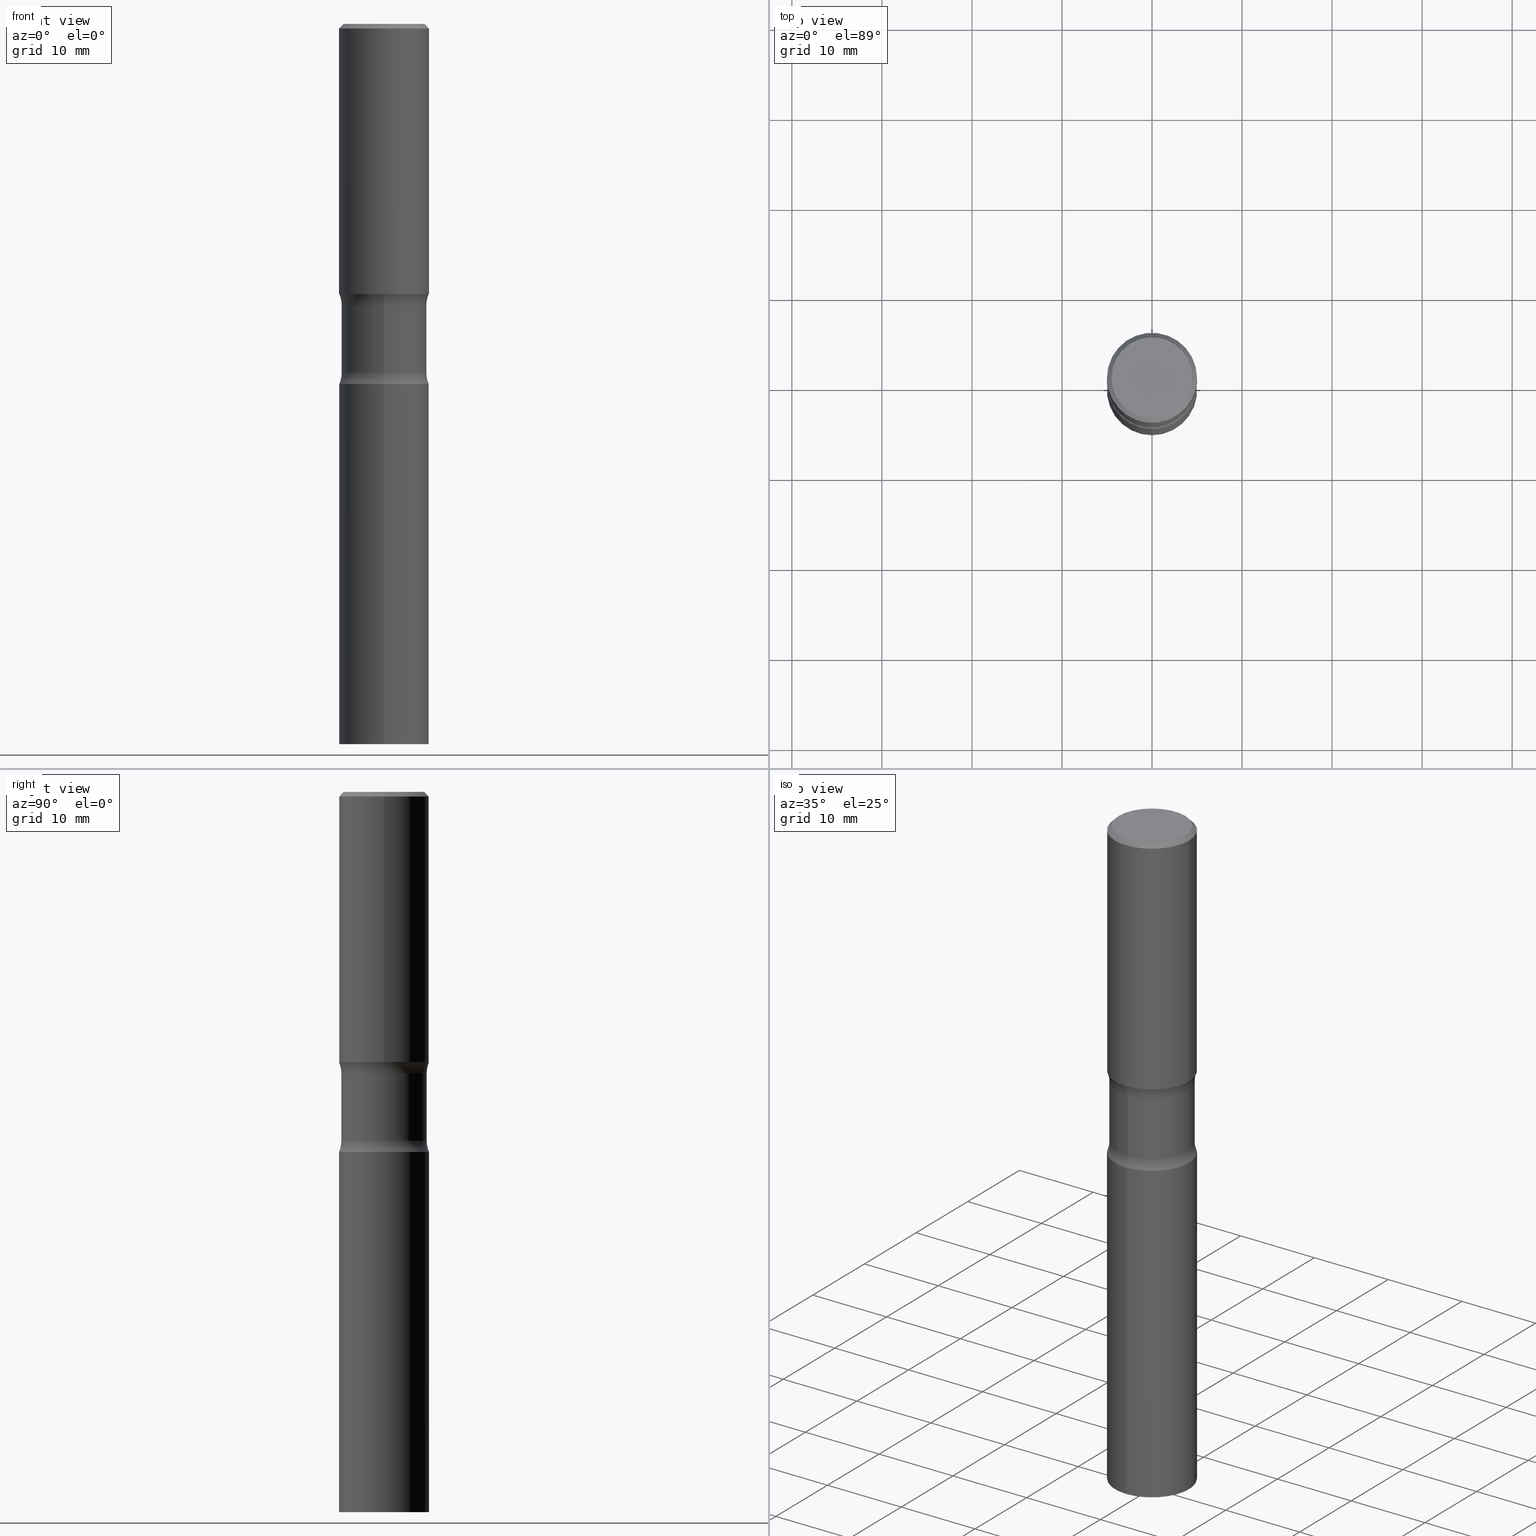
[diagram: canonical four-view strip — front | top / right | iso, engineering-drawing reading convention]
A machine part, canonical four-view strip (front | top / right | iso — engineering-drawing reading convention). The complete STEP part file that produces these views, byte-faithful:
ISO-10303-21;
HEADER;
FILE_DESCRIPTION (( 'STEP AP203' ),
    '1' );
FILE_NAME ('44629.STEP',
    '2024-03-11T13:37:11',
    ( '' ),
    ( '' ),
    'SwSTEP 2.0',
    'SolidWorks 2023',
    '' );
FILE_SCHEMA (( 'CONFIG_CONTROL_DESIGN' ));
ENDSEC;

DATA;
#1 = LINE ( 'NONE', #200, #377 ) ;
#2 = ADVANCED_FACE ( 'NONE', ( #333 ), #177, .T. ) ;
#3 = PERSON_AND_ORGANIZATION_ROLE ( 'creator' ) ;
#4 = FACE_OUTER_BOUND ( 'NONE', #463, .T. ) ;
#5 = LINE ( 'NONE', #123, #272 ) ;
#6 = AXIS2_PLACEMENT_3D ( 'NONE', #237, #312, #473 ) ;
#7 = APPROVAL_STATUS ( 'not_yet_approved' ) ;
#8 = CARTESIAN_POINT ( 'NONE',  ( 4.890937612370281041E-31, -6.982962677686302702E-17, -0.02000000000000003511 ) ) ;
#9 = DIRECTION ( 'NONE',  ( 2.475171165693508831E-29, -3.448945869473840543E-15, -1.000000000000000000 ) ) ;
#10 = APPROVAL_DATE_TIME ( #35, #159 ) ;
#11 =( NAMED_UNIT ( * ) PLANE_ANGLE_UNIT ( ) SI_UNIT ( $, .RADIAN. ) );
#12 = APPROVAL_PERSON_ORGANIZATION ( #84, #110, #434 ) ;
#13 = ORIENTED_EDGE ( 'NONE', *, *, #58, .T. ) ;
#14 = CIRCLE ( 'NONE', #417, 0.1968499999999999417 ) ;
#15 = CARTESIAN_POINT ( 'NONE',  ( 3.849290930426290038E-29, -5.501010267591150684E-15, -1.574799999999999756 ) ) ;
#16 = EDGE_LOOP ( 'NONE', ( #411, #50, #226, #247 ) ) ;
#17 = DIRECTION ( 'NONE',  ( -1.000000000000000000, 6.982962677686265922E-15, -4.883557194083112340E-29 ) ) ;
#18 = ORIENTED_EDGE ( 'NONE', *, *, #243, .T. ) ;
#19 = ORIENTED_EDGE ( 'NONE', *, *, #419, .F. ) ;
#20 = DIRECTION ( 'NONE',  ( 2.475171165693508831E-29, -3.448945869473840543E-15, -1.000000000000000000 ) ) ;
#21 = CIRCLE ( 'NONE', #201, 0.1768499999999999239 ) ;
#22 = EDGE_LOOP ( 'NONE', ( #266, #222, #59, #366 ) ) ;
#23 = CIRCLE ( 'NONE', #310, 0.1249999999999999584 ) ;
#24 = EDGE_CURVE ( 'NONE', #448, #297, #375, .T. ) ;
#25 = ORIENTED_EDGE ( 'NONE', *, *, #395, .F. ) ;
#26 = ORIENTED_EDGE ( 'NONE', *, *, #273, .F. ) ;
#27 = ORIENTED_EDGE ( 'NONE', *, *, #231, .T. ) ;
#28 = CARTESIAN_POINT ( 'NONE',  ( 2.998087953510655377E-29, -4.314929469621585971E-15, -1.230903388438940427 ) ) ;
#29 = ORIENTED_EDGE ( 'NONE', *, *, #141, .F. ) ;
#30 = DIRECTION ( 'NONE',  ( 6.982962677686265922E-15, 1.000000000000000000, -2.929595703661408850E-15 ) ) ;
#31 = ADVANCED_BREP_SHAPE_REPRESENTATION ( '44629', ( #103, #121, #119, #190 ), #299 ) ;
#32 = COORDINATED_UNIVERSAL_TIME_OFFSET ( 5, 0, .BEHIND. ) ;
#33 = EDGE_LOOP ( 'NONE', ( #252, #416, #288, #425 ) ) ;
#34 = CYLINDRICAL_SURFACE ( 'NONE', #433, 0.1968499999999999694 ) ;
#35 = DATE_AND_TIME ( #304, #96 ) ;
#36 = CARTESIAN_POINT ( 'NONE',  ( 3.010135839855015201E-29, -4.297676210653356635E-15, -1.230903388438940427 ) ) ;
#37 = DIRECTION ( 'NONE',  ( -2.444304629429953350E-29, 3.493148506217393663E-15, 1.000000000000000000 ) ) ;
#38 = CIRCLE ( 'NONE', #133, 0.1968500000000000250 ) ;
#39 = TOROIDAL_SURFACE ( 'NONE', #136, 0.3114999999999999991, 0.1250000000000000278 ) ;
#40 = DIRECTION ( 'NONE',  ( 2.475171165693508831E-29, -3.448945869473840543E-15, -1.000000000000000000 ) ) ;
#41 = CYLINDRICAL_SURFACE ( 'NONE', #168, 0.1968499999999999694 ) ;
#42 = APPROVAL_DATE_TIME ( #87, #110 ) ;
#43 = FACE_OUTER_BOUND ( 'NONE', #259, .T. ) ;
#44 = ADVANCED_FACE ( 'NONE', ( #456 ), #102, .F. ) ;
#45 = FACE_OUTER_BOUND ( 'NONE', #22, .T. ) ;
#46 = ADVANCED_FACE ( 'NONE', ( #52 ), #140, .T. ) ;
#47 = CARTESIAN_POINT ( 'NONE',  ( 1.398703375343814783E-15, 0.1968499999999890060, -3.149600000000000843 ) ) ;
#48 = ORIENTED_EDGE ( 'NONE', *, *, #24, .F. ) ;
#49 = DIRECTION ( 'NONE',  ( -2.445468806185136597E-29, 3.491481338843145583E-15, 1.000000000000000000 ) ) ;
#50 = ORIENTED_EDGE ( 'NONE', *, *, #488, .T. ) ;
#51 = LINE ( 'NONE', #248, #355 ) ;
#52 = FACE_OUTER_BOUND ( 'NONE', #380, .T. ) ;
#53 = AXIS2_PLACEMENT_3D ( 'NONE', #36, #303, #424 ) ;
#54 = DIRECTION ( 'NONE',  ( 1.000000000000000000, -6.982962677686266711E-15, 4.875932113059880251E-29 ) ) ;
#55 = CYLINDRICAL_SURFACE ( 'NONE', #501, 0.1865000000000000546 ) ;
#56 = DIRECTION ( 'NONE',  ( 6.860497997771532351E-15, 1.000000000000000000, 0.000000000000000000 ) ) ;
#57 = ORIENTED_EDGE ( 'NONE', *, *, #361, .T. ) ;
#58 = EDGE_CURVE ( 'NONE', #340, #305, #38, .T. ) ;
#59 = ORIENTED_EDGE ( 'NONE', *, *, #164, .T. ) ;
#60 = CARTESIAN_POINT ( 'NONE',  ( 1.302322539388566302E-15, 0.1864999999999891189, -3.149600000000000399 ) ) ;
#61 = AXIS2_PLACEMENT_3D ( 'NONE', #142, #406, #257 ) ;
#62 = EDGE_LOOP ( 'NONE', ( #149, #452, #337, #48 ) ) ;
#63 = AXIS2_PLACEMENT_3D ( 'NONE', #8, #197, #319 ) ;
#64 = ORIENTED_EDGE ( 'NONE', *, *, #477, .F. ) ;
#65 = FACE_OUTER_BOUND ( 'NONE', #462, .T. ) ;
#66 = ORIENTED_EDGE ( 'NONE', *, *, #58, .F. ) ;
#67 = EDGE_CURVE ( 'NONE', #423, #302, #264, .T. ) ;
#68 = VERTEX_POINT ( 'NONE', #97 ) ;
#69 = CC_DESIGN_DATE_AND_TIME_ASSIGNMENT ( #91, #359, ( #373 ) ) ;
#70 = DIRECTION ( 'NONE',  ( 6.982962677686265922E-15, 1.000000000000000000, -2.929595703661407273E-15 ) ) ;
#71 = AXIS2_PLACEMENT_3D ( 'NONE', #365, #49, #54 ) ;
#72 = CLOSED_SHELL ( 'NONE', ( #208, #269, #508, #144, #44, #287 ) ) ;
#73 = DIRECTION ( 'NONE',  ( -2.475171165693508831E-29, 3.448945869473840543E-15, 1.000000000000000000 ) ) ;
#74 = EDGE_CURVE ( 'NONE', #368, #336, #458, .T. ) ;
#75 = ORIENTED_EDGE ( 'NONE', *, *, #141, .T. ) ;
#76 = PLANE ( 'NONE',  #280 ) ;
#77 = ADVANCED_FACE ( 'NONE', ( #409 ), #55, .T. ) ;
#78 = DIRECTION ( 'NONE',  ( 6.982962677686265133E-15, 1.000000000000000000, -3.448945869473840543E-15 ) ) ;
#79 = AXIS2_PLACEMENT_3D ( 'NONE', #268, #227, #385 ) ;
#80 = CARTESIAN_POINT ( 'NONE',  ( 2.874816042492756057E-29, -4.143160278779300076E-15, -1.181099999999999817 ) ) ;
#81 = PERSON_AND_ORGANIZATION_ROLE ( 'design_supplier' ) ;
#82 = PRODUCT_DEFINITION_SHAPE ( 'NONE', 'NONE',  #422 ) ;
#83 = CARTESIAN_POINT ( 'NONE',  ( 2.888343206985264877E-29, -4.123788609307639024E-15, -1.181099999999999817 ) ) ;
#84 = PERSON_AND_ORGANIZATION ( #126, #440 ) ;
#85 = DIMENSIONAL_EXPONENTS ( 1.000000000000000000, 0.000000000000000000, 0.000000000000000000, 0.000000000000000000, 0.000000000000000000, 0.000000000000000000, 0.000000000000000000 ) ;
#86 = DIRECTION ( 'NONE',  ( 1.000000000000000000, -6.982962677686266711E-15, 4.876176775795935793E-29 ) ) ;
#87 = DATE_AND_TIME ( #249, #167 ) ;
#88 = DIRECTION ( 'NONE',  ( -1.000000000000000000, 6.982962677686265922E-15, -4.883557194083112340E-29 ) ) ;
#89 = CIRCLE ( 'NONE', #420, 0.1865000000000000824 ) ;
#90 = DIRECTION ( 'NONE',  ( 6.982962677686265133E-15, 1.000000000000000000, -3.448945869473840543E-15 ) ) ;
#91 = DATE_AND_TIME ( #478, #132 ) ;
#92 = ADVANCED_FACE ( 'NONE', ( #342 ), #507, .F. ) ;
#93 = DIRECTION ( 'NONE',  ( 1.000000000000000000, 0.000000000000000000, 0.000000000000000000 ) ) ;
#94 = ORIENTED_EDGE ( 'NONE', *, *, #497, .T. ) ;
#95 = ORIENTED_EDGE ( 'NONE', *, *, #164, .F. ) ;
#96 = LOCAL_TIME ( 9, 37, 11.00000000000000000, #32 ) ;
#97 = CARTESIAN_POINT ( 'NONE',  ( 1.374596203102580262E-15, 0.1968499999999945849, -1.574800000000000422 ) ) ;
#98 = APPLICATION_CONTEXT ( 'configuration controlled 3d designs of mechanical parts and assemblies' ) ;
#99 = CIRCLE ( 'NONE', #228, 0.1968500000000000250 ) ;
#100 = FACE_OUTER_BOUND ( 'NONE', #256, .T. ) ;
#101 = CC_DESIGN_PERSON_AND_ORGANIZATION_ASSIGNMENT ( #356, #443, ( #373 ) ) ;
#102 = PLANE ( 'NONE',  #174 ) ;
#103 = MANIFOLD_SOLID_BREP ( 'Body-Move/Copy2[1]', #427 ) ;
#104 = ORIENTED_EDGE ( 'NONE', *, *, #419, .T. ) ;
#105 = CARTESIAN_POINT ( 'NONE',  ( 1.398703375343757393E-15, 0.1968500000000000527, -6.876262834488941313E-16 ) ) ;
#106 = DIRECTION ( 'NONE',  ( 6.982962677686265922E-15, 1.000000000000000000, -2.929595703661406878E-15 ) ) ;
#107 = ORIENTED_EDGE ( 'NONE', *, *, #198, .F. ) ;
#108 = DIRECTION ( 'NONE',  ( -2.444304629429953350E-29, 3.493148506217393663E-15, 1.000000000000000000 ) ) ;
#109 = CIRCLE ( 'NONE', #61, 0.1968500000000000250 ) ;
#110 = APPROVAL ( #353, 'UNSPECIFIED' ) ;
#111 = VERTEX_POINT ( 'NONE', #188 ) ;
#112 = CARTESIAN_POINT ( 'NONE',  ( 2.888343206985264877E-29, -4.123788609307639024E-15, -1.181099999999999817 ) ) ;
#113 = ORIENTED_EDGE ( 'NONE', *, *, #386, .T. ) ;
#114 = DIRECTION ( 'NONE',  ( -2.445468806185136597E-29, 3.491481338843145583E-15, 1.000000000000000000 ) ) ;
#115 = ADVANCED_FACE ( 'NONE', ( #223 ), #503, .F. ) ;
#116 = ORIENTED_EDGE ( 'NONE', *, *, #344, .T. ) ;
#117 = LINE ( 'NONE', #271, #254 ) ;
#118 = AXIS2_PLACEMENT_3D ( 'NONE', #130, #129, #396 ) ;
#119 = MANIFOLD_SOLID_BREP ( 'Body-Move/Copy2[4]', #219 ) ;
#120 = CARTESIAN_POINT ( 'NONE',  ( -1.314985953722828706E-15, -0.1865000000000042735, -1.230903388438939983 ) ) ;
#121 = MANIFOLD_SOLID_BREP ( 'Body-Move/Copy2[2]', #72 ) ;
#122 = CARTESIAN_POINT ( 'NONE',  ( 0.000000000000000000, 0.000000000000000000, 0.000000000000000000 ) ) ;
#123 = CARTESIAN_POINT ( 'NONE',  ( -0.1968499999999999417, 1.304766576325678113E-15, -0.02000000000000003511 ) ) ;
#124 = DATE_AND_TIME ( #137, #431 ) ;
#125 = AXIS2_PLACEMENT_3D ( 'NONE', #499, #73, #161 ) ;
#126 = PERSON ( 'UNSPECIFIED', 'UNSPECIFIED', 'UNSPECIFIED', ('UNSPECIFIED'), ('UNSPECIFIED'), ('UNSPECIFIED') ) ;
#127 = DIRECTION ( 'NONE',  ( -2.445468806185136877E-29, 3.491481338843145188E-15, 1.000000000000000000 ) ) ;
#128 = APPLICATION_CONTEXT ( 'configuration controlled 3d designs of mechanical parts and assemblies' ) ;
#129 = DIRECTION ( 'NONE',  ( 2.475171165693508831E-29, -3.448945869473840543E-15, -1.000000000000000000 ) ) ;
#130 = CARTESIAN_POINT ( 'NONE',  ( 2.998087953510655377E-29, -4.314929469621585971E-15, -1.230903388438940427 ) ) ;
#131 = SECURITY_CLASSIFICATION_LEVEL ( 'unclassified' ) ;
#132 = LOCAL_TIME ( 9, 37, 11.00000000000000000, #481 ) ;
#133 = AXIS2_PLACEMENT_3D ( 'NONE', #489, #108, #487 ) ;
#134 = AXIS2_PLACEMENT_3D ( 'NONE', #296, #139, #445 ) ;
#135 = CARTESIAN_POINT ( 'NONE',  ( -0.1968499999999999417, 1.304766576325678113E-15, -0.02000000000000003511 ) ) ;
#136 = AXIS2_PLACEMENT_3D ( 'NONE', #240, #9, #78 ) ;
#137 = CALENDAR_DATE ( 2024, 11, 3 ) ;
#138 = PERSON_AND_ORGANIZATION_ROLE ( 'design_owner' ) ;
#139 = DIRECTION ( 'NONE',  ( -2.445468806185136597E-29, 3.491481338843145583E-15, 1.000000000000000000 ) ) ;
#140 = PLANE ( 'NONE',  #347 ) ;
#141 = EDGE_CURVE ( 'NONE', #302, #423, #89, .T. ) ;
#142 = CARTESIAN_POINT ( 'NONE',  ( 7.698581860852581197E-29, -1.100202053518230452E-14, -3.149600000000000399 ) ) ;
#143 = APPROVAL_PERSON_ORGANIZATION ( #444, #159, #383 ) ;
#144 = ADVANCED_FACE ( 'NONE', ( #65 ), #76, .F. ) ;
#145 = VERTEX_POINT ( 'NONE', #229 ) ;
#146 = CIRCLE ( 'NONE', #175, 0.1250000000000000278 ) ;
#147 = CARTESIAN_POINT ( 'NONE',  ( -2.137045126305794728E-15, -0.3115000000000053282, -1.524996611561058035 ) ) ;
#148 = VERTEX_POINT ( 'NONE', #381 ) ;
#149 = ORIENTED_EDGE ( 'NONE', *, *, #243, .F. ) ;
#150 = CARTESIAN_POINT ( 'NONE',  ( 7.747190482160426523E-29, -1.093241022283855548E-14, -3.149599999999999511 ) ) ;
#151 = EDGE_CURVE ( 'NONE', #216, #297, #505, .T. ) ;
#152 = ORIENTED_EDGE ( 'NONE', *, *, #477, .T. ) ;
#153 = LOCAL_TIME ( 9, 37, 11.00000000000000000, #163 ) ;
#154 = DIRECTION ( 'NONE',  ( 2.475171165693508831E-29, -3.448945869473840543E-15, -1.000000000000000000 ) ) ;
#155 = AXIS2_PLACEMENT_3D ( 'NONE', #28, #301, #30 ) ;
#156 = ORIENTED_EDGE ( 'NONE', *, *, #436, .T. ) ;
#157 = DIRECTION ( 'NONE',  ( 0.7071067811865472397, -7.319954787623254468E-15, -0.7071067811865477948 ) ) ;
#158 = CARTESIAN_POINT ( 'NONE',  ( 3.726019019408391277E-29, -5.329241076748865577E-15, -1.524996611561059146 ) ) ;
#159 = APPROVAL ( #405, 'UNSPECIFIED' ) ;
#160 = CIRCLE ( 'NONE', #349, 0.1968500000000000527 ) ;
#161 = DIRECTION ( 'NONE',  ( -6.982962677686265922E-15, -1.000000000000000000, 3.448945869473840543E-15 ) ) ;
#162 = DIRECTION ( 'NONE',  ( -6.982962677686265133E-15, -1.000000000000000000, 4.163344669033674057E-15 ) ) ;
#163 = COORDINATED_UNIVERSAL_TIME_OFFSET ( 5, 0, .BEHIND. ) ;
#164 = EDGE_CURVE ( 'NONE', #297, #448, #14, .T. ) ;
#165 = PRODUCT ( '44629', '44629', '', ( #446 ) ) ;
#166 = PERSON_AND_ORGANIZATION ( #126, #440 ) ;
#167 = LOCAL_TIME ( 9, 37, 11.00000000000000000, #397 ) ;
#168 = AXIS2_PLACEMENT_3D ( 'NONE', #169, #204, #86 ) ;
#169 = CARTESIAN_POINT ( 'NONE',  ( 0.000000000000000000, 0.000000000000000000, 0.000000000000000000 ) ) ;
#170 = DIRECTION ( 'NONE',  ( 2.475171165693508831E-29, -3.448945869473840543E-15, -1.000000000000000000 ) ) ;
#171 = EDGE_CURVE ( 'NONE', #414, #191, #465, .T. ) ;
#172 = CARTESIAN_POINT ( 'NONE',  ( -1.350489030861297227E-15, -0.1968500000000041328, -1.181099999999999151 ) ) ;
#173 = CC_DESIGN_APPROVAL ( #159, ( #422 ) ) ;
#174 = AXIS2_PLACEMENT_3D ( 'NONE', #338, #498, #327 ) ;
#175 = AXIS2_PLACEMENT_3D ( 'NONE', #439, #88, #275 ) ;
#176 = DIRECTION ( 'NONE',  ( 2.445468806185136597E-29, -3.491481338843145583E-15, -1.000000000000000000 ) ) ;
#177 = CYLINDRICAL_SURFACE ( 'NONE', #389, 0.1865000000000000546 ) ;
#178 =( NAMED_UNIT ( * ) SI_UNIT ( $, .STERADIAN. ) SOLID_ANGLE_UNIT ( ) );
#179 = DIRECTION ( 'NONE',  ( 2.444304629429953350E-29, -3.493148506217393663E-15, -1.000000000000000000 ) ) ;
#180 = ORIENTED_EDGE ( 'NONE', *, *, #395, .T. ) ;
#181 = EDGE_LOOP ( 'NONE', ( #460, #211, #180, #298 ) ) ;
#182 = DIRECTION ( 'NONE',  ( -6.982962677686265133E-15, -1.000000000000000000, 0.000000000000000000 ) ) ;
#183 = EDGE_CURVE ( 'NONE', #191, #335, #341, .T. ) ;
#184 = CARTESIAN_POINT ( 'NONE',  ( 1.597802926082413196E-29, -1.973868320454601619E-14, -3.149599999999999511 ) ) ;
#185 = ORIENTED_EDGE ( 'NONE', *, *, #457, .F. ) ;
#186 = DIRECTION ( 'NONE',  ( 2.475171165693508831E-29, -3.448945869473840543E-15, -1.000000000000000000 ) ) ;
#187 = ORIENTED_EDGE ( 'NONE', *, *, #171, .T. ) ;
#188 = CARTESIAN_POINT ( 'NONE',  ( -0.1768499999999999239, 1.269851762937246858E-15, 4.268512490091652920E-18 ) ) ;
#189 = ORIENTED_EDGE ( 'NONE', *, *, #491, .F. ) ;
#190 = AXIS2_PLACEMENT_3D ( 'NONE', #244, #329, #93 ) ;
#191 = VERTEX_POINT ( 'NONE', #120 ) ;
#192 = CARTESIAN_POINT ( 'NONE',  ( 0.1768499999999999239, -1.316798864272041549E-15, 4.268512490109333727E-18 ) ) ;
#193 = CYLINDRICAL_SURFACE ( 'NONE', #316, 0.1968500000000000527 ) ;
#194 = DIRECTION ( 'NONE',  ( -6.982962677686265133E-15, -1.000000000000000000, 3.493148506217393663E-15 ) ) ;
#195 = AXIS2_PLACEMENT_3D ( 'NONE', #83, #40, #390 ) ;
#196 = VECTOR ( 'NONE', #494, 39.37007874015748143 ) ;
#197 = DIRECTION ( 'NONE',  ( 2.445468806185136597E-29, -3.491481338843145583E-15, -1.000000000000000000 ) ) ;
#198 = EDGE_CURVE ( 'NONE', #336, #368, #408, .T. ) ;
#199 = CARTESIAN_POINT ( 'NONE',  ( -1.350489030861287564E-15, -0.1968500000000055761, -1.574799999999999311 ) ) ;
#200 = CARTESIAN_POINT ( 'NONE',  ( 0.1968499999999999694, -1.374596203102541411E-15, 9.598753983154298056E-30 ) ) ;
#201 = AXIS2_PLACEMENT_3D ( 'NONE', #295, #404, #453 ) ;
#202 = ADVANCED_FACE ( 'NONE', ( #274 ), #306, .F. ) ;
#203 = AXIS2_PLACEMENT_3D ( 'NONE', #246, #394, #403 ) ;
#204 = DIRECTION ( 'NONE',  ( -2.445468806185136597E-29, 3.491481338843145583E-15, 1.000000000000000000 ) ) ;
#205 = PERSON_AND_ORGANIZATION ( #126, #440 ) ;
#206 = CARTESIAN_POINT ( 'NONE',  ( 1.302322539388526465E-15, 0.1864999999999947533, -1.524996611561059812 ) ) ;
#207 = ORIENTED_EDGE ( 'NONE', *, *, #468, .F. ) ;
#208 = ADVANCED_FACE ( 'NONE', ( #504 ), #34, .T. ) ;
#209 = VECTOR ( 'NONE', #157, 39.37007874015748143 ) ;
#210 = LINE ( 'NONE', #105, #253 ) ;
#211 = ORIENTED_EDGE ( 'NONE', *, *, #183, .T. ) ;
#212 = DIRECTION ( 'NONE',  ( -2.444304629429953350E-29, 3.493148506217393663E-15, 1.000000000000000000 ) ) ;
#213 = ORIENTED_EDGE ( 'NONE', *, *, #479, .T. ) ;
#214 = FACE_OUTER_BOUND ( 'NONE', #33, .T. ) ;
#215 = ORIENTED_EDGE ( 'NONE', *, *, #429, .T. ) ;
#216 = VERTEX_POINT ( 'NONE', #192 ) ;
#217 = CIRCLE ( 'NONE', #500, 0.1249999999999999584 ) ;
#218 = CARTESIAN_POINT ( 'NONE',  ( 4.890937612370281041E-31, -6.982962677686302702E-17, -0.02000000000000003511 ) ) ;
#219 = CLOSED_SHELL ( 'NONE', ( #77, #402, #262, #92, #251, #115, #438, #2 ) ) ;
#220 = EDGE_LOOP ( 'NONE', ( #263, #455, #113, #224 ) ) ;
#221 = CONICAL_SURFACE ( 'NONE', #63, 0.1968499999999999417, 0.7853981633974479459 ) ;
#222 = ORIENTED_EDGE ( 'NONE', *, *, #151, .T. ) ;
#223 = FACE_OUTER_BOUND ( 'NONE', #502, .T. ) ;
#224 = ORIENTED_EDGE ( 'NONE', *, *, #321, .T. ) ;
#225 = CARTESIAN_POINT ( 'NONE',  ( 1.234936949548815604E-15, 0.1768499999999999239, -6.153342185293597578E-16 ) ) ;
#226 = ORIENTED_EDGE ( 'NONE', *, *, #250, .F. ) ;
#227 = DIRECTION ( 'NONE',  ( 2.444304629429953350E-29, -3.493148506217393663E-15, -1.000000000000000000 ) ) ;
#228 = AXIS2_PLACEMENT_3D ( 'NONE', #80, #358, #350 ) ;
#229 = CARTESIAN_POINT ( 'NONE',  ( 1.374596203102570007E-15, 0.1968499999999958894, -1.181100000000000483 ) ) ;
#230 = DIRECTION ( 'NONE',  ( -2.444304629429953070E-29, 3.493148506217393663E-15, 1.000000000000000000 ) ) ;
#231 = EDGE_CURVE ( 'NONE', #305, #148, #117, .T. ) ;
#232 = PLANE ( 'NONE',  #195 ) ;
#233 = AXIS2_PLACEMENT_3D ( 'NONE', #218, #176, #486 ) ;
#234 = AXIS2_PLACEMENT_3D ( 'NONE', #454, #413, #261 ) ;
#235 = ORIENTED_EDGE ( 'NONE', *, *, #321, .F. ) ;
#236 = CC_DESIGN_PERSON_AND_ORGANIZATION_ASSIGNMENT ( #400, #81, ( #472 ) ) ;
#237 = CARTESIAN_POINT ( 'NONE',  ( 3.849290930426290038E-29, -5.501010267591150684E-15, -1.574799999999999756 ) ) ;
#238 = SHAPE_DEFINITION_REPRESENTATION ( #82, #31 ) ;
#239 = DIRECTION ( 'NONE',  ( 6.982962677686265133E-15, 1.000000000000000000, -3.448945869473840543E-15 ) ) ;
#240 = CARTESIAN_POINT ( 'NONE',  ( 3.010135839855015201E-29, -4.297676210653356635E-15, -1.230903388438940427 ) ) ;
#241 = APPROVAL_ROLE ( '' ) ;
#242 = ADVANCED_FACE ( 'NONE', ( #428 ), #193, .T. ) ;
#243 = EDGE_CURVE ( 'NONE', #368, #448, #437, .T. ) ;
#244 = CARTESIAN_POINT ( 'NONE',  ( 0.000000000000000000, 0.000000000000000000, 0.000000000000000000 ) ) ;
#245 = AXIS2_PLACEMENT_3D ( 'NONE', #314, #354, #480 ) ;
#246 = CARTESIAN_POINT ( 'NONE',  ( 2.874816042492756057E-29, -4.143160278779300076E-15, -1.181099999999999817 ) ) ;
#247 = ORIENTED_EDGE ( 'NONE', *, *, #231, .F. ) ;
#248 = CARTESIAN_POINT ( 'NONE',  ( -1.279482876584313248E-15, -0.1865000000000109626, -3.149599999999999067 ) ) ;
#249 = CALENDAR_DATE ( 2024, 11, 3 ) ;
#250 = EDGE_CURVE ( 'NONE', #148, #469, #391, .T. ) ;
#251 = ADVANCED_FACE ( 'NONE', ( #432 ), #232, .F. ) ;
#252 = ORIENTED_EDGE ( 'NONE', *, *, #151, .F. ) ;
#253 = VECTOR ( 'NONE', #260, 39.37007874015748143 ) ;
#254 = VECTOR ( 'NONE', #230, 39.37007874015748143 ) ;
#255 = LENGTH_MEASURE_WITH_UNIT ( LENGTH_MEASURE( 0.02539999999999999897 ), #362 );
#256 = EDGE_LOOP ( 'NONE', ( #207, #343, #104, #75 ) ) ;
#257 = DIRECTION ( 'NONE',  ( -6.982962677686265133E-15, -1.000000000000000000, 2.775563112689116301E-15 ) ) ;
#258 = DIRECTION ( 'NONE',  ( 2.475171165693508831E-29, -3.448945869473840543E-15, -1.000000000000000000 ) ) ;
#259 = EDGE_LOOP ( 'NONE', ( #407, #13, #27, #64 ) ) ;
#260 = DIRECTION ( 'NONE',  ( -2.444304629429953070E-29, 3.493148506217393663E-15, 1.000000000000000000 ) ) ;
#261 = DIRECTION ( 'NONE',  ( 1.000000000000000000, -6.982962677686269077E-15, 0.000000000000000000 ) ) ;
#262 = ADVANCED_FACE ( 'NONE', ( #322 ), #39, .F. ) ;
#263 = ORIENTED_EDGE ( 'NONE', *, *, #183, .F. ) ;
#264 = CIRCLE ( 'NONE', #324, 0.1865000000000000824 ) ;
#265 = TOROIDAL_SURFACE ( 'NONE', #325, 0.3114999999999999991, 0.1249999999999999584 ) ;
#266 = ORIENTED_EDGE ( 'NONE', *, *, #497, .F. ) ;
#267 = ORIENTED_EDGE ( 'NONE', *, *, #198, .T. ) ;
#268 = CARTESIAN_POINT ( 'NONE',  ( 3.851124275980352235E-29, -5.498384812410185366E-15, -1.574799999999999756 ) ) ;
#269 = ADVANCED_FACE ( 'NONE', ( #45 ), #221, .T. ) ;
#270 = CARTESIAN_POINT ( 'NONE',  ( -2.137045126305801827E-15, -0.3115000000000043290, -1.230903388438939317 ) ) ;
#271 = CARTESIAN_POINT ( 'NONE',  ( -1.374596203102541608E-15, -0.1968500000000000527, 6.876262834488941313E-16 ) ) ;
#272 = VECTOR ( 'NONE', #281, 39.37007874015748143 ) ;
#273 = EDGE_CURVE ( 'NONE', #336, #297, #1, .T. ) ;
#274 = FACE_OUTER_BOUND ( 'NONE', #379, .T. ) ;
#275 = DIRECTION ( 'NONE',  ( -6.982962677686265133E-15, -1.000000000000000000, 0.000000000000000000 ) ) ;
#276 = ORIENTED_EDGE ( 'NONE', *, *, #468, .T. ) ;
#277 = FACE_OUTER_BOUND ( 'NONE', #62, .T. ) ;
#278 = AXIS2_PLACEMENT_3D ( 'NONE', #15, #212, #326 ) ;
#279 = DATE_TIME_ROLE ( 'creation_date' ) ;
#280 = AXIS2_PLACEMENT_3D ( 'NONE', #225, #311, #382 ) ;
#281 = DIRECTION ( 'NONE',  ( -0.7071067811865472397, 2.468850131082253905E-15, -0.7071067811865477948 ) ) ;
#282 = CARTESIAN_POINT ( 'NONE',  ( -0.1968499999999999694, 1.398703375343756999E-15, -9.682923725166782276E-30 ) ) ;
#283 = CARTESIAN_POINT ( 'NONE',  ( 3.849290930426290038E-29, -5.501010267591150684E-15, -1.574799999999999756 ) ) ;
#284 = APPROVAL_PERSON_ORGANIZATION ( #166, #374, #241 ) ;
#285 = VECTOR ( 'NONE', #127, 39.37007874015748143 ) ;
#286 = APPLICATION_PROTOCOL_DEFINITION ( 'international standard', 'config_control_design', 1994, #128 ) ;
#287 = ADVANCED_FACE ( 'NONE', ( #277 ), #41, .T. ) ;
#288 = ORIENTED_EDGE ( 'NONE', *, *, #318, .T. ) ;
#289 = PRODUCT_RELATED_PRODUCT_CATEGORY ( 'detail', '', ( #165 ) ) ;
#290 = APPLICATION_PROTOCOL_DEFINITION ( 'international standard', 'config_control_design', 1994, #98 ) ;
#291 = CARTESIAN_POINT ( 'NONE',  ( 3.726019019408391277E-29, -5.329241076748865577E-15, -1.524996611561059146 ) ) ;
#292 = DESIGN_CONTEXT ( 'detailed design', #128, 'design' ) ;
#293 = CARTESIAN_POINT ( 'NONE',  ( 3.849290930426290038E-29, -5.501010267591150684E-15, -1.574799999999999756 ) ) ;
#294 = DIRECTION ( 'NONE',  ( 6.982962677686265922E-15, 1.000000000000000000, -2.929595703661407273E-15 ) ) ;
#295 = CARTESIAN_POINT ( 'NONE',  ( -1.043851414335219820E-46, 1.490343170380447200E-32, 4.268512490100411279E-18 ) ) ;
#296 = CARTESIAN_POINT ( 'NONE',  ( 4.890937612370281041E-31, -6.982962677686302702E-17, -0.02000000000000003511 ) ) ;
#297 = VERTEX_POINT ( 'NONE', #352 ) ;
#298 = ORIENTED_EDGE ( 'NONE', *, *, #386, .F. ) ;
#299 =( GEOMETRIC_REPRESENTATION_CONTEXT ( 3 ) GLOBAL_UNCERTAINTY_ASSIGNED_CONTEXT ( ( #451 ) ) GLOBAL_UNIT_ASSIGNED_CONTEXT ( ( #371, #11, #178 ) ) REPRESENTATION_CONTEXT ( 'NONE', 'WORKASPACE' ) );
#300 = AXIS2_PLACEMENT_3D ( 'NONE', #270, #466, #461 ) ;
#301 = DIRECTION ( 'NONE',  ( 2.475171165693508831E-29, -3.448945869473840543E-15, -1.000000000000000000 ) ) ;
#302 = VERTEX_POINT ( 'NONE', #206 ) ;
#303 = DIRECTION ( 'NONE',  ( 2.475171165693508831E-29, -3.448945869473840543E-15, -1.000000000000000000 ) ) ;
#304 = CALENDAR_DATE ( 2024, 11, 3 ) ;
#305 = VERTEX_POINT ( 'NONE', #476 ) ;
#306 = PLANE ( 'NONE',  #79 ) ;
#307 = ORIENTED_EDGE ( 'NONE', *, *, #436, .F. ) ;
#308 = CIRCLE ( 'NONE', #71, 0.1768499999999999239 ) ;
#309 = CARTESIAN_POINT ( 'NONE',  ( 4.890937612370281041E-31, -6.982962677686302702E-17, -0.02000000000000003511 ) ) ;
#310 = AXIS2_PLACEMENT_3D ( 'NONE', #415, #17, #182 ) ;
#311 = DIRECTION ( 'NONE',  ( 2.438088387897960049E-29, -3.491481338843145188E-15, -1.000000000000000000 ) ) ;
#312 = DIRECTION ( 'NONE',  ( 2.475171165693508831E-29, -3.448945869473840543E-15, -1.000000000000000000 ) ) ;
#313 = CALENDAR_DATE ( 2024, 11, 3 ) ;
#314 = CARTESIAN_POINT ( 'NONE',  ( 0.000000000000000000, 0.000000000000000000, 0.000000000000000000 ) ) ;
#315 = CC_DESIGN_APPROVAL ( #374, ( #373 ) ) ;
#316 = AXIS2_PLACEMENT_3D ( 'NONE', #388, #37, #194 ) ;
#317 = CC_DESIGN_PERSON_AND_ORGANIZATION_ASSIGNMENT ( #205, #323, ( #422 ) ) ;
#318 = EDGE_CURVE ( 'NONE', #111, #448, #5, .T. ) ;
#319 = DIRECTION ( 'NONE',  ( -1.000000000000000000, 6.982962677686266711E-15, 0.000000000000000000 ) ) ;
#320 = CARTESIAN_POINT ( 'NONE',  ( 0.1968500000000000527, -5.498384812410181421E-15, -1.181099999999999817 ) ) ;
#321 = EDGE_CURVE ( 'NONE', #145, #335, #99, .T. ) ;
#322 = FACE_OUTER_BOUND ( 'NONE', #181, .T. ) ;
#323 = PERSON_AND_ORGANIZATION_ROLE ( 'creator' ) ;
#324 = AXIS2_PLACEMENT_3D ( 'NONE', #291, #258, #106 ) ;
#325 = AXIS2_PLACEMENT_3D ( 'NONE', #442, #20, #90 ) ;
#326 = DIRECTION ( 'NONE',  ( -6.982962677686265133E-15, -1.000000000000000000, 4.163344669033674057E-15 ) ) ;
#327 = DIRECTION ( 'NONE',  ( 1.000000000000000000, -6.982962677686265922E-15, 4.876176775795935793E-29 ) ) ;
#328 = CC_DESIGN_DATE_AND_TIME_ASSIGNMENT ( #124, #279, ( #422 ) ) ;
#329 = DIRECTION ( 'NONE',  ( 0.000000000000000000, 0.000000000000000000, 1.000000000000000000 ) ) ;
#330 = CARTESIAN_POINT ( 'NONE',  ( -1.314985953722820620E-15, -0.1865000000000054114, -1.524996611561058701 ) ) ;
#331 = DIRECTION ( 'NONE',  ( 6.982962677686265922E-15, 1.000000000000000000, -3.493148506217393663E-15 ) ) ;
#332 = LINE ( 'NONE', #60, #196 ) ;
#333 = FACE_OUTER_BOUND ( 'NONE', #339, .T. ) ;
#334 = EDGE_LOOP ( 'NONE', ( #267, #18, #95, #26 ) ) ;
#335 = VERTEX_POINT ( 'NONE', #172 ) ;
#336 = VERTEX_POINT ( 'NONE', #320 ) ;
#337 = ORIENTED_EDGE ( 'NONE', *, *, #273, .T. ) ;
#338 = CARTESIAN_POINT ( 'NONE',  ( 2.888343206985264877E-29, -4.123788609307639024E-15, -1.181099999999999817 ) ) ;
#339 = EDGE_LOOP ( 'NONE', ( #189, #57, #156, #370 ) ) ;
#340 = VERTEX_POINT ( 'NONE', #47 ) ;
#341 = CIRCLE ( 'NONE', #300, 0.1250000000000000278 ) ;
#342 = FACE_OUTER_BOUND ( 'NONE', #220, .T. ) ;
#343 = ORIENTED_EDGE ( 'NONE', *, *, #429, .F. ) ;
#344 = EDGE_CURVE ( 'NONE', #384, #68, #401, .T. ) ;
#345 = CARTESIAN_POINT ( 'NONE',  ( 0.1968499999999999417, -1.420318657638188727E-15, -0.02000000000000003511 ) ) ;
#346 = CONICAL_SURFACE ( 'NONE', #233, 0.1968499999999999417, 0.7853981633974479459 ) ;
#347 = AXIS2_PLACEMENT_3D ( 'NONE', #184, #179, #331 ) ;
#348 = DIRECTION ( 'NONE',  ( 2.475171165693508831E-29, -3.448945869473840543E-15, -1.000000000000000000 ) ) ;
#349 = AXIS2_PLACEMENT_3D ( 'NONE', #293, #378, #447 ) ;
#350 = DIRECTION ( 'NONE',  ( 6.982962677686265133E-15, 1.000000000000000000, -3.469453890861395573E-15 ) ) ;
#351 = DATE_AND_TIME ( #313, #153 ) ;
#352 = CARTESIAN_POINT ( 'NONE',  ( 0.1968499999999999417, -1.420318657638188727E-15, -0.02000000000000003511 ) ) ;
#353 = APPROVAL_STATUS ( 'not_yet_approved' ) ;
#354 = DIRECTION ( 'NONE',  ( -2.444304629429953350E-29, 3.493148506217393663E-15, 1.000000000000000000 ) ) ;
#355 = VECTOR ( 'NONE', #449, 39.37007874015748143 ) ;
#356 = PERSON_AND_ORGANIZATION ( #126, #440 ) ;
#357 = CIRCLE ( 'NONE', #118, 0.1864999999999999714 ) ;
#358 = DIRECTION ( 'NONE',  ( 2.475171165693508831E-29, -3.448945869473840543E-15, -1.000000000000000000 ) ) ;
#359 = DATE_TIME_ROLE ( 'classification_date' ) ;
#360 = CYLINDRICAL_SURFACE ( 'NONE', #245, 0.1968500000000000527 ) ;
#361 = EDGE_CURVE ( 'NONE', #191, #414, #357, .T. ) ;
#362 =( LENGTH_UNIT ( ) NAMED_UNIT ( * ) SI_UNIT ( $, .METRE. ) );
#363 = ORIENTED_EDGE ( 'NONE', *, *, #344, .F. ) ;
#364 = CIRCLE ( 'NONE', #278, 0.1968500000000000527 ) ;
#365 = CARTESIAN_POINT ( 'NONE',  ( -1.043851414335219820E-46, 1.490343170380447200E-32, 4.268512490100411279E-18 ) ) ;
#366 = ORIENTED_EDGE ( 'NONE', *, *, #318, .F. ) ;
#367 = CARTESIAN_POINT ( 'NONE',  ( 1.302322539388518576E-15, 0.1864999999999956692, -1.230903388438941093 ) ) ;
#368 = VERTEX_POINT ( 'NONE', #470 ) ;
#369 = CC_DESIGN_PERSON_AND_ORGANIZATION_ASSIGNMENT ( #475, #3, ( #472 ) ) ;
#370 = ORIENTED_EDGE ( 'NONE', *, *, #67, .F. ) ;
#371 =( CONVERSION_BASED_UNIT ( 'INCH', #255 ) LENGTH_UNIT ( ) NAMED_UNIT ( #85 ) );
#372 = EDGE_LOOP ( 'NONE', ( #107, #418 ) ) ;
#373 = SECURITY_CLASSIFICATION ( '', '', #131 ) ;
#374 = APPROVAL ( #7, 'UNSPECIFIED' ) ;
#375 = CIRCLE ( 'NONE', #134, 0.1968499999999999417 ) ;
#376 = ORIENTED_EDGE ( 'NONE', *, *, #491, .T. ) ;
#377 = VECTOR ( 'NONE', #482, 39.37007874015748143 ) ;
#378 = DIRECTION ( 'NONE',  ( 2.475171165693508831E-29, -3.448945869473840543E-15, -1.000000000000000000 ) ) ;
#379 = EDGE_LOOP ( 'NONE', ( #450, #152 ) ) ;
#380 = EDGE_LOOP ( 'NONE', ( #185, #66 ) ) ;
#381 = CARTESIAN_POINT ( 'NONE',  ( -1.374596203102503151E-15, -0.1968500000000055483, -1.574799999999999089 ) ) ;
#382 = DIRECTION ( 'NONE',  ( -1.000000000000000000, 6.982962677686265922E-15, -4.876176775795935793E-29 ) ) ;
#383 = APPROVAL_ROLE ( '' ) ;
#384 = VERTEX_POINT ( 'NONE', #199 ) ;
#385 = DIRECTION ( 'NONE',  ( 6.982962677686265922E-15, 1.000000000000000000, -3.493148506217393663E-15 ) ) ;
#386 = EDGE_CURVE ( 'NONE', #414, #145, #146, .T. ) ;
#387 = DIRECTION ( 'NONE',  ( -2.445468806185136597E-29, 3.491481338843145583E-15, 1.000000000000000000 ) ) ;
#388 = CARTESIAN_POINT ( 'NONE',  ( 0.000000000000000000, 0.000000000000000000, 0.000000000000000000 ) ) ;
#389 = AXIS2_PLACEMENT_3D ( 'NONE', #492, #186, #294 ) ;
#390 = DIRECTION ( 'NONE',  ( 6.982962677686265922E-15, 1.000000000000000000, -3.448945869473840543E-15 ) ) ;
#391 = CIRCLE ( 'NONE', #441, 0.1968500000000000527 ) ;
#392 = EDGE_LOOP ( 'NONE', ( #187, #376, #29, #307 ) ) ;
#393 = CC_DESIGN_PERSON_AND_ORGANIZATION_ASSIGNMENT ( #485, #138, ( #165 ) ) ;
#394 = DIRECTION ( 'NONE',  ( 2.475171165693508831E-29, -3.448945869473840543E-15, -1.000000000000000000 ) ) ;
#395 = EDGE_CURVE ( 'NONE', #335, #145, #459, .T. ) ;
#396 = DIRECTION ( 'NONE',  ( 6.982962677686265922E-15, 1.000000000000000000, -2.929595703661408850E-15 ) ) ;
#397 = COORDINATED_UNIVERSAL_TIME_OFFSET ( 5, 0, .BEHIND. ) ;
#398 = DIRECTION ( 'NONE',  ( -2.444304629429953350E-29, 3.493148506217393663E-15, 1.000000000000000000 ) ) ;
#399 = CC_DESIGN_APPROVAL ( #110, ( #472 ) ) ;
#400 = PERSON_AND_ORGANIZATION ( #126, #440 ) ;
#401 = CIRCLE ( 'NONE', #6, 0.1968500000000000527 ) ;
#402 = ADVANCED_FACE ( 'NONE', ( #4 ), #484, .F. ) ;
#403 = DIRECTION ( 'NONE',  ( 6.982962677686265133E-15, 1.000000000000000000, -3.469453890861395573E-15 ) ) ;
#404 = DIRECTION ( 'NONE',  ( -2.445468806185136597E-29, 3.491481338843145583E-15, 1.000000000000000000 ) ) ;
#405 = APPROVAL_STATUS ( 'not_yet_approved' ) ;
#406 = DIRECTION ( 'NONE',  ( -2.444304629429953350E-29, 3.493148506217393663E-15, 1.000000000000000000 ) ) ;
#407 = ORIENTED_EDGE ( 'NONE', *, *, #488, .F. ) ;
#408 = CIRCLE ( 'NONE', #474, 0.1968500000000000527 ) ;
#409 = FACE_OUTER_BOUND ( 'NONE', #392, .T. ) ;
#410 = ADVANCED_FACE ( 'NONE', ( #43 ), #360, .T. ) ;
#411 = ORIENTED_EDGE ( 'NONE', *, *, #457, .T. ) ;
#412 = DIRECTION ( 'NONE',  ( 1.000000000000000000, -6.860497997771530774E-15, 4.841319788888276624E-29 ) ) ;
#413 = DIRECTION ( 'NONE',  ( -2.445468806185136597E-29, 3.491481338843145583E-15, 1.000000000000000000 ) ) ;
#414 = VERTEX_POINT ( 'NONE', #367 ) ;
#415 = CARTESIAN_POINT ( 'NONE',  ( 2.175192874099309015E-15, 0.3114999999999946700, -1.524996611561060256 ) ) ;
#416 = ORIENTED_EDGE ( 'NONE', *, *, #479, .F. ) ;
#417 = AXIS2_PLACEMENT_3D ( 'NONE', #309, #114, #421 ) ;
#418 = ORIENTED_EDGE ( 'NONE', *, *, #74, .F. ) ;
#419 = EDGE_CURVE ( 'NONE', #68, #302, #23, .T. ) ;
#420 = AXIS2_PLACEMENT_3D ( 'NONE', #158, #154, #426 ) ;
#421 = DIRECTION ( 'NONE',  ( 1.000000000000000000, -6.982962677686266711E-15, 0.000000000000000000 ) ) ;
#422 = PRODUCT_DEFINITION ( 'UNKNOWN', '', #472, #292 ) ;
#423 = VERTEX_POINT ( 'NONE', #330 ) ;
#424 = DIRECTION ( 'NONE',  ( 6.982962677686265133E-15, 1.000000000000000000, -3.448945869473840543E-15 ) ) ;
#425 = ORIENTED_EDGE ( 'NONE', *, *, #24, .T. ) ;
#426 = DIRECTION ( 'NONE',  ( 6.982962677686265922E-15, 1.000000000000000000, -2.929595703661406878E-15 ) ) ;
#427 = CLOSED_SHELL ( 'NONE', ( #242, #410, #202, #46 ) ) ;
#428 = FACE_OUTER_BOUND ( 'NONE', #16, .T. ) ;
#429 = EDGE_CURVE ( 'NONE', #68, #384, #160, .T. ) ;
#430 = DIRECTION ( 'NONE',  ( -2.445468806185136597E-29, 3.491481338843145583E-15, 1.000000000000000000 ) ) ;
#431 = LOCAL_TIME ( 9, 37, 11.00000000000000000, #483 ) ;
#432 = FACE_OUTER_BOUND ( 'NONE', #496, .T. ) ;
#433 = AXIS2_PLACEMENT_3D ( 'NONE', #122, #430, #464 ) ;
#434 = APPROVAL_ROLE ( '' ) ;
#435 = CARTESIAN_POINT ( 'NONE',  ( 3.729331643110602471E-29, -5.324497211064467755E-15, -1.524996611561059146 ) ) ;
#436 = EDGE_CURVE ( 'NONE', #414, #302, #332, .T. ) ;
#437 = LINE ( 'NONE', #282, #285 ) ;
#438 = ADVANCED_FACE ( 'NONE', ( #100 ), #265, .F. ) ;
#439 = CARTESIAN_POINT ( 'NONE',  ( 2.175192874099301915E-15, 0.3114999999999957248, -1.230903388438941537 ) ) ;
#440 = ORGANIZATION ( 'UNSPECIFIED', 'UNSPECIFIED', '' ) ;
#441 = AXIS2_PLACEMENT_3D ( 'NONE', #283, #398, #162 ) ;
#442 = CARTESIAN_POINT ( 'NONE',  ( 3.729331643110602471E-29, -5.324497211064467755E-15, -1.524996611561059146 ) ) ;
#443 = PERSON_AND_ORGANIZATION_ROLE ( 'classification_officer' ) ;
#444 = PERSON_AND_ORGANIZATION ( #126, #440 ) ;
#445 = DIRECTION ( 'NONE',  ( 1.000000000000000000, -6.982962677686266711E-15, 0.000000000000000000 ) ) ;
#446 = MECHANICAL_CONTEXT ( 'NONE', #98, 'mechanical' ) ;
#447 = DIRECTION ( 'NONE',  ( 6.982962677686265133E-15, 1.000000000000000000, -2.775563112689115906E-15 ) ) ;
#448 = VERTEX_POINT ( 'NONE', #135 ) ;
#449 = DIRECTION ( 'NONE',  ( 2.475171165693509111E-29, -3.448945869473840543E-15, -1.000000000000000000 ) ) ;
#450 = ORIENTED_EDGE ( 'NONE', *, *, #250, .T. ) ;
#451 = UNCERTAINTY_MEASURE_WITH_UNIT (LENGTH_MEASURE( 1.000000000000000082E-05 ), #371, 'distance_accuracy_value', 'NONE');
#452 = ORIENTED_EDGE ( 'NONE', *, *, #74, .T. ) ;
#453 = DIRECTION ( 'NONE',  ( 1.000000000000000000, -6.982962677686266711E-15, 4.875932113059880251E-29 ) ) ;
#454 = CARTESIAN_POINT ( 'NONE',  ( 2.888343206985264877E-29, -4.123788609307639024E-15, -1.181099999999999817 ) ) ;
#455 = ORIENTED_EDGE ( 'NONE', *, *, #171, .F. ) ;
#456 = FACE_OUTER_BOUND ( 'NONE', #372, .T. ) ;
#457 = EDGE_CURVE ( 'NONE', #305, #340, #109, .T. ) ;
#458 = CIRCLE ( 'NONE', #234, 0.1968500000000000527 ) ;
#459 = CIRCLE ( 'NONE', #203, 0.1968500000000000250 ) ;
#460 = ORIENTED_EDGE ( 'NONE', *, *, #361, .F. ) ;
#461 = DIRECTION ( 'NONE',  ( 6.860497997771532351E-15, 1.000000000000000000, 0.000000000000000000 ) ) ;
#462 = EDGE_LOOP ( 'NONE', ( #213, #94 ) ) ;
#463 = EDGE_LOOP ( 'NONE', ( #363, #276, #495, #19 ) ) ;
#464 = DIRECTION ( 'NONE',  ( 1.000000000000000000, -6.982962677686266711E-15, 4.876176775795935793E-29 ) ) ;
#465 = CIRCLE ( 'NONE', #155, 0.1864999999999999714 ) ;
#466 = DIRECTION ( 'NONE',  ( 1.000000000000000000, -6.860497997771530774E-15, 4.841319788888276624E-29 ) ) ;
#467 = DIRECTION ( 'NONE',  ( 1.000000000000000000, -6.982962677686269077E-15, 0.000000000000000000 ) ) ;
#468 = EDGE_CURVE ( 'NONE', #384, #423, #217, .T. ) ;
#469 = VERTEX_POINT ( 'NONE', #490 ) ;
#470 = CARTESIAN_POINT ( 'NONE',  ( -0.1968500000000000805, -6.981057426984923875E-16, -1.181099999999999817 ) ) ;
#471 = APPROVAL_DATE_TIME ( #351, #374 ) ;
#472 = PRODUCT_DEFINITION_FORMATION_WITH_SPECIFIED_SOURCE ( 'ANY', '', #165, .NOT_KNOWN. ) ;
#473 = DIRECTION ( 'NONE',  ( 6.982962677686265133E-15, 1.000000000000000000, -2.775563112689115906E-15 ) ) ;
#474 = AXIS2_PLACEMENT_3D ( 'NONE', #112, #387, #467 ) ;
#475 = PERSON_AND_ORGANIZATION ( #126, #440 ) ;
#476 = CARTESIAN_POINT ( 'NONE',  ( -1.374596203102464497E-15, -0.1968500000000110162, -3.149599999999999511 ) ) ;
#477 = EDGE_CURVE ( 'NONE', #469, #148, #364, .T. ) ;
#478 = CALENDAR_DATE ( 2024, 11, 3 ) ;
#479 = EDGE_CURVE ( 'NONE', #111, #216, #21, .T. ) ;
#480 = DIRECTION ( 'NONE',  ( -6.982962677686265133E-15, -1.000000000000000000, 3.493148506217393663E-15 ) ) ;
#481 = COORDINATED_UNIVERSAL_TIME_OFFSET ( 5, 0, .BEHIND. ) ;
#482 = DIRECTION ( 'NONE',  ( -2.445468806185136877E-29, 3.491481338843145188E-15, 1.000000000000000000 ) ) ;
#483 = COORDINATED_UNIVERSAL_TIME_OFFSET ( 5, 0, .BEHIND. ) ;
#484 = TOROIDAL_SURFACE ( 'NONE', #493, 0.3114999999999999991, 0.1249999999999999584 ) ;
#485 = PERSON_AND_ORGANIZATION ( #126, #440 ) ;
#486 = DIRECTION ( 'NONE',  ( -1.000000000000000000, 6.982962677686266711E-15, 0.000000000000000000 ) ) ;
#487 = DIRECTION ( 'NONE',  ( -6.982962677686265133E-15, -1.000000000000000000, 2.775563112689116301E-15 ) ) ;
#488 = EDGE_CURVE ( 'NONE', #340, #469, #210, .T. ) ;
#489 = CARTESIAN_POINT ( 'NONE',  ( 7.698581860852581197E-29, -1.100202053518230452E-14, -3.149600000000000399 ) ) ;
#490 = CARTESIAN_POINT ( 'NONE',  ( 1.398703375343834702E-15, 0.1968499999999945571, -1.574800000000000644 ) ) ;
#491 = EDGE_CURVE ( 'NONE', #191, #423, #51, .T. ) ;
#492 = CARTESIAN_POINT ( 'NONE',  ( 7.747190482160426523E-29, -1.093241022283855548E-14, -3.149599999999999511 ) ) ;
#493 = AXIS2_PLACEMENT_3D ( 'NONE', #435, #170, #239 ) ;
#494 = DIRECTION ( 'NONE',  ( 2.475171165693509111E-29, -3.448945869473840543E-15, -1.000000000000000000 ) ) ;
#495 = ORIENTED_EDGE ( 'NONE', *, *, #67, .T. ) ;
#496 = EDGE_LOOP ( 'NONE', ( #235, #25 ) ) ;
#497 = EDGE_CURVE ( 'NONE', #216, #111, #308, .T. ) ;
#498 = DIRECTION ( 'NONE',  ( -2.438088387897960049E-29, 3.491481338843145188E-15, 1.000000000000000000 ) ) ;
#499 = CARTESIAN_POINT ( 'NONE',  ( 3.851124275980352235E-29, -5.498384812410185366E-15, -1.574799999999999756 ) ) ;
#500 = AXIS2_PLACEMENT_3D ( 'NONE', #147, #412, #56 ) ;
#501 = AXIS2_PLACEMENT_3D ( 'NONE', #150, #348, #70 ) ;
#502 = EDGE_LOOP ( 'NONE', ( #215, #116 ) ) ;
#503 = PLANE ( 'NONE',  #125 ) ;
#504 = FACE_OUTER_BOUND ( 'NONE', #334, .T. ) ;
#505 = LINE ( 'NONE', #345, #209 ) ;
#506 = CC_DESIGN_SECURITY_CLASSIFICATION ( #373, ( #472 ) ) ;
#507 = TOROIDAL_SURFACE ( 'NONE', #53, 0.3114999999999999991, 0.1250000000000000278 ) ;
#508 = ADVANCED_FACE ( 'NONE', ( #214 ), #346, .T. ) ;
ENDSEC;
END-ISO-10303-21;
